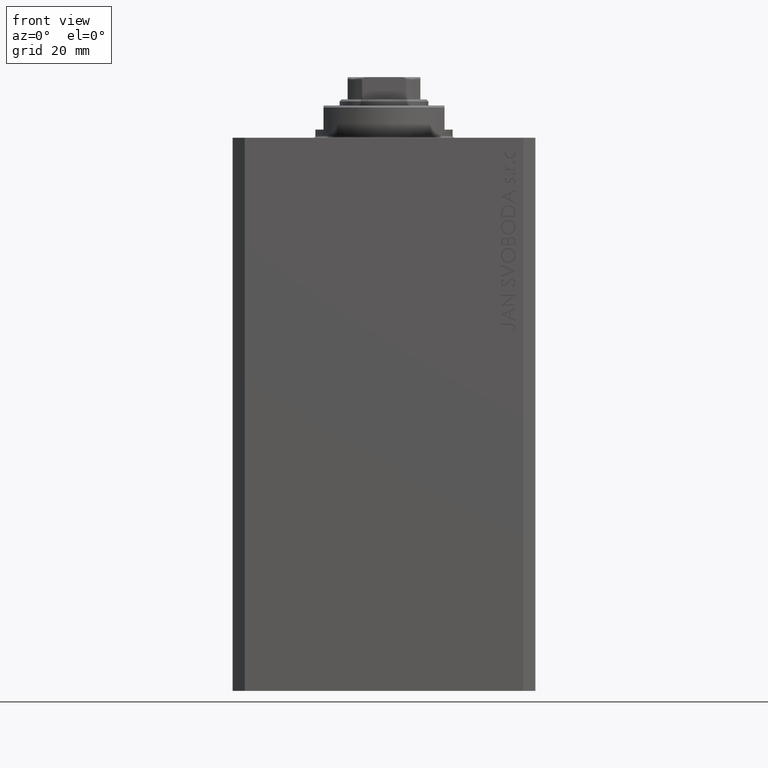
[diagram: clean part render]
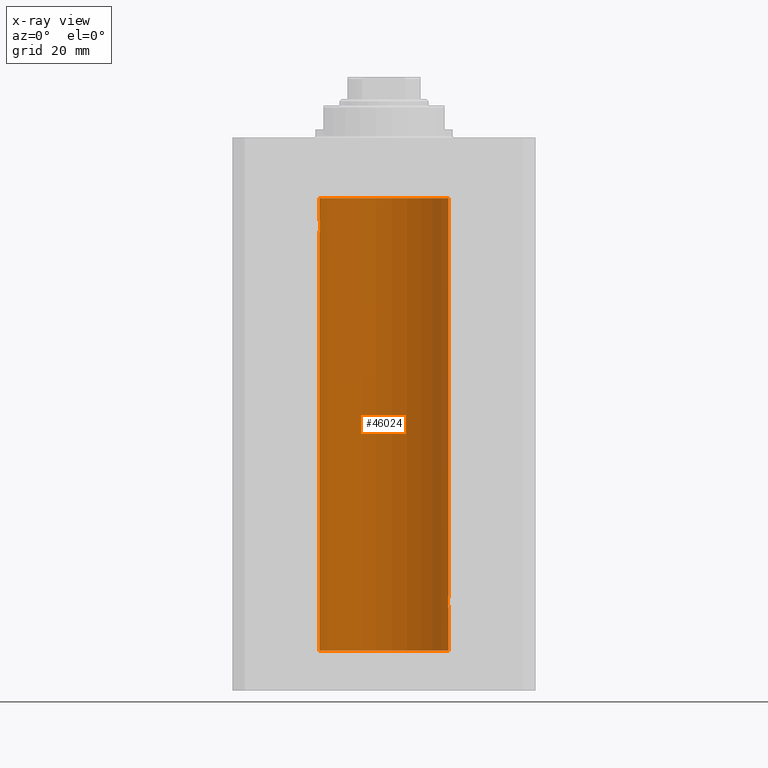
[diagram: x-ray — body ghosted, one internal face saturated and labeled with its STEP entity id]
A machine part, front view, then the same camera in x-ray: the body is ghosted and one INTERNAL B-rep face — a face not visible from any outside direction — is saturated and labeled: STEP entity #46024.
In plain terms, the highlighted cylindrical surface (partial cylindrical patch) has radius 16 mm, axis along (0, 0, 1).
Its self-contained STEP definition (entity closure, byte-faithful):
#102 = CARTESIAN_POINT ( 'NONE',  ( -15.88137861827787134, 1.947280337074169587, -21.47468243540596333 ) ) ;
#340 = CARTESIAN_POINT ( 'NONE',  ( -15.94564302722881877, 1.321075116345886924, -23.50737160312428742 ) ) ;
#495 = ORIENTED_EDGE ( 'NONE', *, *, #43890, .T. ) ;
#1098 = CARTESIAN_POINT ( 'NONE',  ( 15.87450786638750699, 2.000000000000297096, -115.0000000000000142 ) ) ;
#1699 = ORIENTED_EDGE ( 'NONE', *, *, #17274, .F. ) ;
#2083 = CARTESIAN_POINT ( 'NONE',  ( 15.96887171920781689, 1.003448269354837441, -113.2650518254207554 ) ) ;
#2502 = CARTESIAN_POINT ( 'NONE',  ( -15.95382484008323409, 1.219564485341772198, -20.40948495147901554 ) ) ;
#2509 = VECTOR ( 'NONE', #4377, 1000.000000000000000 ) ;
#2622 = EDGE_CURVE ( 'NONE', #17747, #18572, #17174, .T. ) ;
#2738 = CARTESIAN_POINT ( 'NONE',  ( -15.92099550861380131, 1.598790766515155282, -20.77043888260214644 ) ) ;
#2790 = CARTESIAN_POINT ( 'NONE',  ( 15.95379436193629985, 1.219925354616377966, -113.4098000984431565 ) ) ;
#3455 = CARTESIAN_POINT ( 'NONE',  ( -16.00000000000000000, 1.959434878635765131E-15, -127.0999999999999943 ) ) ;
#3687 = CARTESIAN_POINT ( 'NONE',  ( -16.00000000000000000, 1.959434851239607631E-15, -23.99999999999999645 ) ) ;
#3924 = CARTESIAN_POINT ( 'NONE',  ( -15.97587307151818159, 0.8866640484200133399, -23.79749928605040665 ) ) ;
#4014 = VECTOR ( 'NONE', #45200, 1000.000000000000000 ) ;
#4142 = DIRECTION ( 'NONE',  ( 1.000000000000000000, 0.000000000000000000, 0.000000000000000000 ) ) ;
#4377 = DIRECTION ( 'NONE',  ( -0.000000000000000000, -0.000000000000000000, 1.000000000000000000 ) ) ;
#4679 = EDGE_CURVE ( 'NONE', #13699, #26534, #30278, .T. ) ;
#4778 = AXIS2_PLACEMENT_3D ( 'NONE', #16383, #13026, #19720 ) ;
#5203 = CARTESIAN_POINT ( 'NONE',  ( -16.00000000000000000, 1.959434878635765131E-15, -127.0999999999999943 ) ) ;
#5389 = CARTESIAN_POINT ( 'NONE',  ( 15.87450786638751410, 2.000000000000297096, -115.2612453035981730 ) ) ;
#5676 = CARTESIAN_POINT ( 'NONE',  ( 15.87617168140110380, 1.986916736633999037, -114.7368093443493962 ) ) ;
#5747 = ORIENTED_EDGE ( 'NONE', *, *, #31353, .F. ) ;
#6378 = CARTESIAN_POINT ( 'NONE',  ( 15.92095407913750726, 1.590131347295332009, -113.7799846904292167 ) ) ;
#6612 = ORIENTED_EDGE ( 'NONE', *, *, #46310, .T. ) ;
#7742 = CARTESIAN_POINT ( 'NONE',  ( -15.96885838080210362, 1.003662148334370174, -23.73482670674955486 ) ) ;
#7952 = DIRECTION ( 'NONE',  ( 0.000000000000000000, 0.000000000000000000, 1.000000000000000000 ) ) ;
#7969 = CARTESIAN_POINT ( 'NONE',  ( -15.99834873924246104, 0.2632563459770838055, -23.98690924832126115 ) ) ;
#8494 = CARTESIAN_POINT ( 'NONE',  ( 15.97582125337101999, 0.8876008124445644576, -116.7970409061775285 ) ) ;
#8503 = CYLINDRICAL_SURFACE ( 'NONE', #4778, 16.00000000000000000 ) ;
#8814 = EDGE_LOOP ( 'NONE', ( #31649, #1699, #17024, #495, #35220, #6612, #45110, #5747, #27892 ) ) ;
#9025 = LINE ( 'NONE', #5203, #13235 ) ;
#9483 = CARTESIAN_POINT ( 'NONE',  ( 15.90582997788426312, 1.734897462761020082, -113.9964633285505471 ) ) ;
#10605 = CARTESIAN_POINT ( 'NONE',  ( -15.98747331501412461, 0.6445079780200578812, -23.89783726498894723 ) ) ;
#10878 = CARTESIAN_POINT ( 'NONE',  ( 0.000000000000000000, 0.000000000000000000, -127.0999999999999943 ) ) ;
#11084 = CARTESIAN_POINT ( 'NONE',  ( -15.88709929148890510, 1.898058445420892637, -22.64386968033013403 ) ) ;
#11146 = CARTESIAN_POINT ( 'NONE',  ( -16.00000000000000000, 8.139613661842072923E-16, -20.00000000000000000 ) ) ;
#11347 = CARTESIAN_POINT ( 'NONE',  ( -16.00000000000000000, 1.959434878635765131E-15, -127.0999999999999943 ) ) ;
#11416 = VERTEX_POINT ( 'NONE', #12354 ) ;
#12072 = CARTESIAN_POINT ( 'NONE',  ( 15.95380611548778660, 1.219810915946573759, -116.5903287070132706 ) ) ;
#12354 = CARTESIAN_POINT ( 'NONE',  ( 16.00000000000000000, -2.738688404655786685E-23, -113.0000000000000142 ) ) ;
#12402 = VERTEX_POINT ( 'NONE', #38999 ) ;
#13026 = DIRECTION ( 'NONE',  ( -0.000000000000000000, -0.000000000000000000, 1.000000000000000000 ) ) ;
#13235 = VECTOR ( 'NONE', #44825, 1000.000000000000000 ) ;
#13678 = AXIS2_PLACEMENT_3D ( 'NONE', #10878, #13753, #25429 ) ;
#13699 = VERTEX_POINT ( 'NONE', #11146 ) ;
#13715 = CARTESIAN_POINT ( 'NONE',  ( -15.99211983514074298, 0.5181437283162074747, -20.06388673317935911 ) ) ;
#13753 = DIRECTION ( 'NONE',  ( 0.000000000000000000, 0.000000000000000000, 1.000000000000000000 ) ) ;
#14668 = CARTESIAN_POINT ( 'NONE',  ( -15.87616016863256618, 1.987008272775798723, -22.26251583007899626 ) ) ;
#14907 = CARTESIAN_POINT ( 'NONE',  ( -15.92908549642226745, 1.507649250492136606, -23.32075824828932653 ) ) ;
#15448 = CARTESIAN_POINT ( 'NONE',  ( -16.00000000000000000, 1.959434878635765131E-15, -15.00000000000000000 ) ) ;
#16144 = FACE_OUTER_BOUND ( 'NONE', #8814, .T. ) ;
#16383 = CARTESIAN_POINT ( 'NONE',  ( 0.000000000000000000, 0.000000000000000000, -127.0999999999999943 ) ) ;
#16402 = CARTESIAN_POINT ( 'NONE',  ( 16.00000000000000000, 3.524002214059393877E-15, -117.0000000000000142 ) ) ;
#16501 = CARTESIAN_POINT ( 'NONE',  ( 16.00000000000000000, 0.000000000000000000, -15.00000000000000000 ) ) ;
#16645 = CARTESIAN_POINT ( 'NONE',  ( 15.87450786638751055, 2.000000000000297984, -114.8694386949729562 ) ) ;
#17024 = ORIENTED_EDGE ( 'NONE', *, *, #17398, .T. ) ;
#17068 = CARTESIAN_POINT ( 'NONE',  ( -15.94553003295877680, 1.322357532253827461, -20.49389287531754889 ) ) ;
#17121 = CARTESIAN_POINT ( 'NONE',  ( 15.88712192135845491, 1.897869642555071179, -114.3555794672821406 ) ) ;
#17174 = CIRCLE ( 'NONE', #40038, 16.00000000000000000 ) ;
#17274 = EDGE_CURVE ( 'NONE', #39815, #33084, #43431, .T. ) ;
#17355 = CARTESIAN_POINT ( 'NONE',  ( 15.99834953062734222, 0.2631943783489354982, -113.0130845296388316 ) ) ;
#17398 = EDGE_CURVE ( 'NONE', #39815, #38397, #32834, .T. ) ;
#17747 = VERTEX_POINT ( 'NONE', #16501 ) ;
#18572 = VERTEX_POINT ( 'NONE', #15448 ) ;
#19001 = CARTESIAN_POINT ( 'NONE',  ( 15.99836014839681830, 0.2623923436743452187, -116.9869991933481828 ) ) ;
#19239 = CARTESIAN_POINT ( 'NONE',  ( 15.99211620657850474, 0.5182628822511399225, -116.9360834489417442 ) ) ;
#19476 = CARTESIAN_POINT ( 'NONE',  ( 15.96893716441426214, 1.002454028984434808, -116.7355604244121707 ) ) ;
#19720 = DIRECTION ( 'NONE',  ( 1.000000000000000000, 0.000000000000000000, 0.000000000000000000 ) ) ;
#20233 = CARTESIAN_POINT ( 'NONE',  ( 15.88249567060696243, 1.935716055827872539, -114.4802781602162014 ) ) ;
#20558 = VECTOR ( 'NONE', #29492, 1000.000000000000000 ) ;
#20639 = CARTESIAN_POINT ( 'NONE',  ( -15.98744362947834929, 0.6452446332038160870, -20.10241129944407490 ) ) ;
#20927 = CARTESIAN_POINT ( 'NONE',  ( 15.92911104305801828, 1.507378839264603476, -113.6789366429541559 ) ) ;
#21578 = CARTESIAN_POINT ( 'NONE',  ( -15.90580292899658055, 1.735145127817749655, -23.00311247035039486 ) ) ;
#22284 = CARTESIAN_POINT ( 'NONE',  ( -15.99206840425678955, 0.5198215460038748681, -23.93569052926128649 ) ) ;
#23044 = CARTESIAN_POINT ( 'NONE',  ( 15.88135773388169092, 1.947448446433282854, -115.5247245543324937 ) ) ;
#24202 = CARTESIAN_POINT ( 'NONE',  ( -15.99836091803360283, 0.2623312429553310565, -20.01299475991587329 ) ) ;
#25306 = EDGE_CURVE ( 'NONE', #33084, #26534, #40664, .T. ) ;
#25429 = DIRECTION ( 'NONE',  ( 1.000000000000000000, 0.000000000000000000, 0.000000000000000000 ) ) ;
#25786 = CARTESIAN_POINT ( 'NONE',  ( -16.00000000000000000, 1.959434851239607631E-15, -23.99999999999999645 ) ) ;
#25849 = CARTESIAN_POINT ( 'NONE',  ( 0.000000000000000000, 0.000000000000000000, -15.00000000000000000 ) ) ;
#26499 = CARTESIAN_POINT ( 'NONE',  ( 16.00000000000000000, 0.000000000000000000, -127.0999999999999943 ) ) ;
#26534 = VERTEX_POINT ( 'NONE', #25786 ) ;
#27892 = ORIENTED_EDGE ( 'NONE', *, *, #4679, .T. ) ;
#28745 = CARTESIAN_POINT ( 'NONE',  ( -16.00000000000000000, 0.1305944228192325030, -23.99999999999999645 ) ) ;
#29223 = CARTESIAN_POINT ( 'NONE',  ( -15.95377581882983442, 1.220169175415122931, -23.59001528100121803 ) ) ;
#29492 = DIRECTION ( 'NONE',  ( -0.000000000000000000, -0.000000000000000000, 1.000000000000000000 ) ) ;
#29684 = CARTESIAN_POINT ( 'NONE',  ( -15.92092783521423272, 1.590393755196006786, -23.21967657442277755 ) ) ;
#30278 = B_SPLINE_CURVE_WITH_KNOTS ( 'NONE', 3,
 ( #46178, #35438, #24202, #13715, #20639, #35201, #35664, #2502, #17068, #2738, #31629, #102, #43784, #33038, #14668, #36615, #11084, #39962, #21578, #29684, #14907, #340, #29223, #7742, #3924, #10605, #22284, #7969, #28745, #3687 ),
 .UNSPECIFIED., .F., .F.,
 ( 4, 2, 2, 2, 2, 2, 2, 2, 2, 2, 2, 2, 2, 2, 4 ),
 ( 7.909002969168862706E-19, 0.0003911894522871180884, 0.0007823789045742353095, 0.001173568356861352802, 0.001564757809148469968, 0.002347136713722698664, 0.003129515618296926493, 0.003520705070584046262, 0.003911894522871165597, 0.004303083975158284932, 0.004694273427445404268, 0.005085462879732523603, 0.005476652332019642938, 0.005867841784306762273, 0.006259031236593881609 ),
 .UNSPECIFIED. ) ;
#30395 = LINE ( 'NONE', #30639, #4014 ) ;
#30447 = CARTESIAN_POINT ( 'NONE',  ( 15.99999999999999645, 0.1323149458028788361, -117.0000000000000142 ) ) ;
#30639 = CARTESIAN_POINT ( 'NONE',  ( 16.00000000000000000, 0.000000000000000000, -127.0999999999999943 ) ) ;
#30925 = CARTESIAN_POINT ( 'NONE',  ( 15.90454527605181667, 1.748004143318092174, -116.0061673938155167 ) ) ;
#31353 = EDGE_CURVE ( 'NONE', #13699, #18572, #9025, .T. ) ;
#31629 = CARTESIAN_POINT ( 'NONE',  ( -15.90457341008072412, 1.747750603376305278, -20.99340818440418488 ) ) ;
#31649 = ORIENTED_EDGE ( 'NONE', *, *, #25306, .F. ) ;
#31909 = CARTESIAN_POINT ( 'NONE',  ( 15.98747899434752817, 0.6443623600228916004, -113.1021155051082303 ) ) ;
#32834 = LINE ( 'NONE', #36414, #20558 ) ;
#33038 = CARTESIAN_POINT ( 'NONE',  ( -15.87450182760079542, 2.000047931387149092, -22.12985308350499380 ) ) ;
#33084 = VERTEX_POINT ( 'NONE', #11347 ) ;
#33798 = CARTESIAN_POINT ( 'NONE',  ( 15.98743782203464825, 0.6453927552190293904, -116.8975403585268111 ) ) ;
#34784 = CARTESIAN_POINT ( 'NONE',  ( 15.89878974374255449, 1.797508500259969777, -114.1133488878856355 ) ) ;
#35008 = CARTESIAN_POINT ( 'NONE',  ( 15.99207203775707065, 0.5197027266689088210, -113.0642796061806479 ) ) ;
#35201 = CARTESIAN_POINT ( 'NONE',  ( -15.97583181162461052, 0.8874076679346778462, -20.20286585251778888 ) ) ;
#35220 = ORIENTED_EDGE ( 'NONE', *, *, #42950, .T. ) ;
#35438 = CARTESIAN_POINT ( 'NONE',  ( -15.99999999999999645, 0.1322838750249263340, -20.00000000000000000 ) ) ;
#35489 = CARTESIAN_POINT ( 'NONE',  ( 15.94566414814287469, 1.320819617421907788, -113.4924075827248657 ) ) ;
#35664 = CARTESIAN_POINT ( 'NONE',  ( -15.96895041604535770, 1.002241074716284874, -20.26431901501738153 ) ) ;
#35717 = CARTESIAN_POINT ( 'NONE',  ( 16.00000000000000000, 0.1305637488590863926, -113.0000000000000000 ) ) ;
#36244 = B_SPLINE_CURVE_WITH_KNOTS ( 'NONE', 3,
 ( #38362, #16645, #5676, #20233, #17121, #34784, #9483, #6378, #20927, #35489, #2790, #2083, #46232, #31909, #35008, #17355, #35717, #46464 ),
 .UNSPECIFIED., .F., .F.,
 ( 4, 2, 2, 2, 2, 2, 2, 2, 4 ),
 ( 0.003130250677538718058, 0.003521348247420690372, 0.003912445817302662686, 0.004303543387184635000, 0.004694640957066607313, 0.005085738526948579627, 0.005476836096830552808, 0.005867933666712525122, 0.006259031236594497435 ),
 .UNSPECIFIED. ) ;
#36414 = CARTESIAN_POINT ( 'NONE',  ( 16.00000000000000000, 0.000000000000000000, -127.0999999999999943 ) ) ;
#36615 = CARTESIAN_POINT ( 'NONE',  ( -15.88247600692092831, 1.935876924222084350, -22.51913097710111700 ) ) ;
#37360 = CARTESIAN_POINT ( 'NONE',  ( 16.00000000000000000, 3.524002214059393877E-15, -117.0000000000000142 ) ) ;
#37600 = CARTESIAN_POINT ( 'NONE',  ( 15.94550883254178331, 1.322613426523511881, -116.5058849502901523 ) ) ;
#38362 = CARTESIAN_POINT ( 'NONE',  ( 15.87450786638750699, 2.000000000000297096, -115.0000000000000142 ) ) ;
#38397 = VERTEX_POINT ( 'NONE', #16402 ) ;
#38999 = CARTESIAN_POINT ( 'NONE',  ( 15.87450786638750699, 2.000000000000297096, -115.0000000000000142 ) ) ;
#39815 = VERTEX_POINT ( 'NONE', #26499 ) ;
#39962 = CARTESIAN_POINT ( 'NONE',  ( -15.89876304682112362, 1.797743958659264507, -22.88617757057269841 ) ) ;
#40038 = AXIS2_PLACEMENT_3D ( 'NONE', #25849, #7952, #4142 ) ;
#40664 = LINE ( 'NONE', #3455, #2509 ) ;
#42950 = EDGE_CURVE ( 'NONE', #12402, #11416, #36244, .T. ) ;
#42997 = B_SPLINE_CURVE_WITH_KNOTS ( 'NONE', 3,
 ( #37360, #30447, #19001, #19239, #33798, #8494, #19476, #12072, #37600, #45484, #30925, #23044, #5389, #1098 ),
 .UNSPECIFIED., .F., .F.,
 ( 4, 2, 2, 2, 2, 2, 4 ),
 ( 3.424160547694500162E-18, 0.0003912813346923356916, 0.0007825626693846680221, 0.001173844004077000082, 0.001565125338769331924, 0.002347688008154024883, 0.003130250677538718058 ),
 .UNSPECIFIED. ) ;
#43431 = CIRCLE ( 'NONE', #13678, 16.00000000000000000 ) ;
#43784 = CARTESIAN_POINT ( 'NONE',  ( -15.87451999516785506, 1.999903730784163169, -21.73808537237744432 ) ) ;
#43890 = EDGE_CURVE ( 'NONE', #38397, #12402, #42997, .T. ) ;
#44825 = DIRECTION ( 'NONE',  ( -0.000000000000000000, -0.000000000000000000, 1.000000000000000000 ) ) ;
#45110 = ORIENTED_EDGE ( 'NONE', *, *, #2622, .T. ) ;
#45200 = DIRECTION ( 'NONE',  ( -0.000000000000000000, -0.000000000000000000, 1.000000000000000000 ) ) ;
#45484 = CARTESIAN_POINT ( 'NONE',  ( 15.92096875784782739, 1.599058044721133331, -116.2292259384397113 ) ) ;
#46024 = ADVANCED_FACE ( 'NONE', ( #16144 ), #8503, .F. ) ;
#46178 = CARTESIAN_POINT ( 'NONE',  ( -16.00000000000000000, 8.139613661842072923E-16, -20.00000000000000000 ) ) ;
#46232 = CARTESIAN_POINT ( 'NONE',  ( 15.97588373855009536, 0.8864683965309503311, -113.2024065562767419 ) ) ;
#46310 = EDGE_CURVE ( 'NONE', #11416, #17747, #30395, .T. ) ;
#46464 = CARTESIAN_POINT ( 'NONE',  ( 16.00000000000000000, -2.738688404655786685E-23, -113.0000000000000142 ) ) ;